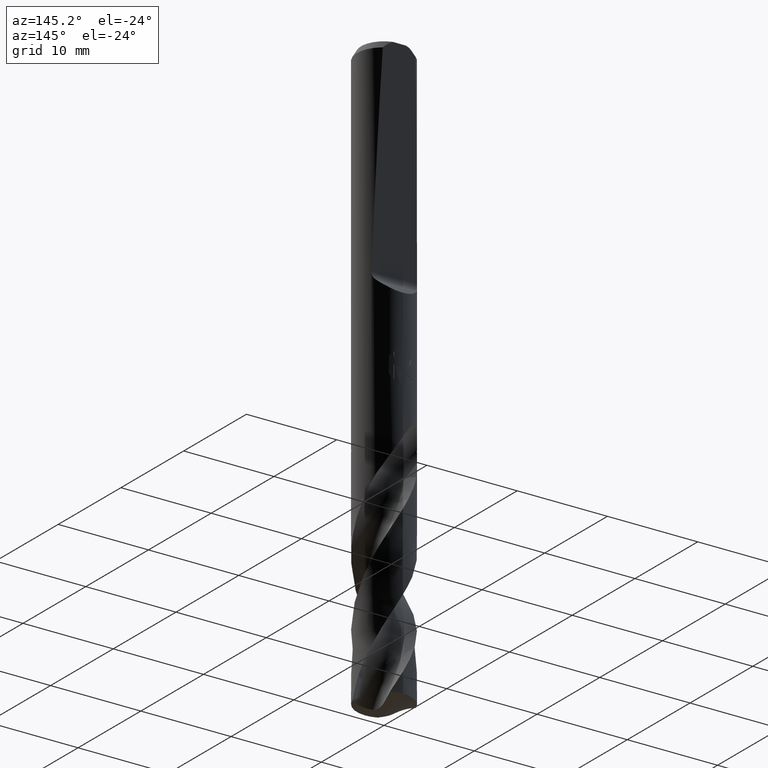
[diagram: clean part render]
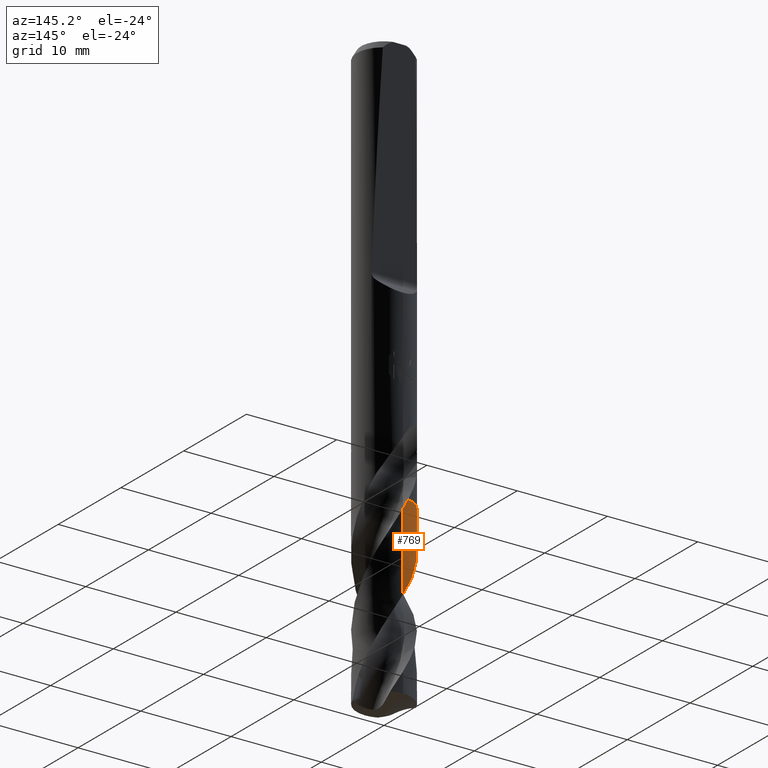
[diagram: same view with one face highlighted and labeled with its STEP entity id]
A machine part, auxiliary view. The second image highlights one B-rep face of the part: STEP entity #769.
In plain terms, the highlighted conical surface has half-angle 0 deg.
Its self-contained STEP definition (entity closure, byte-faithful):
#313=EDGE_CURVE('',#343,#473,#849,.T.);
#315=VERTEX_POINT('',#851);
#335=EDGE_CURVE('',#473,#597,#874,.T.);
#343=VERTEX_POINT('',#883);
#399=EDGE_CURVE('',#665,#343,#949,.T.);
#473=VERTEX_POINT('',#1030);
#597=VERTEX_POINT('',#1161);
#599=EDGE_CURVE('',#597,#717,#1163,.T.);
#625=EDGE_CURVE('',#717,#315,#1191,.T.);
#665=VERTEX_POINT('',#1232);
#685=EDGE_CURVE('',#315,#665,#1253,.T.);
#717=VERTEX_POINT('',#1286);
#769=ADVANCED_FACE('',(#1344),#1345,.T.);
#849=B_SPLINE_CURVE_WITH_KNOTS('',3,(#1596,#1597,#1598,#1599),.UNSPECIFIED.,.F.,.F.,(4,4),(0.0,0.0106873064534853),.UNSPECIFIED.);
#851=CARTESIAN_POINT('',(1.38944868348976E-011,2.99990574704637,-46.5211389365925));
#874=CIRCLE('',#1726,2.9999);
#883=CARTESIAN_POINT('',(-2.86578746513015,-0.88693989719291,-45.405));
#949=B_SPLINE_CURVE_WITH_KNOTS('',3,(#2419,#2420,#2421,#2422,#2423,#2424,#2425,#2426,#2427,#2428,#2429,#2430,#2431,#2432,#2433,#2434,#2435,#2436,#2437,#2438,#2439,#2440,#2441,#2442,#2443,#2444,#2445,#2446,#2447,#2448,#2449,#2450,#2451,#2452,#2453,#2454,#2455,#2456,#2457,#2458,#2459,#2460,#2461,#2462,#2463,#2464,#2465,#2466,#2467,#2468,#2469,#2470),.UNSPECIFIED.,.F.,.F.,(4,2,2,2,2,2,2,2,2,2,2,2,2,2,2,2,2,2,2,2,2,2,2,2,2,4),(0.0,0.705446608272091,5.40706832285761,5.98513556122134,7.10352541670759,7.68127963469226,8.83994438663613,9.12898939676574,10.2894917210956,10.8678122313131,12.0297274511684,12.6086770989085,13.7711370252399,14.3504561979634,15.3924379983706,16.3031634962617,17.1021971318671,17.8000898956323,19.0251833903807,19.4832370218238,20.2870865764002,20.890072592072,20.9465423813497,21.8220644772544,22.2587266854769,22.7001084765415),.UNSPECIFIED.);
#1030=CARTESIAN_POINT('',(-2.86493406579316,-0.88969253602459,-45.4));
#1161=CARTESIAN_POINT('',(-0.645454874550124,2.92963957082087,-45.4));
#1163=B_SPLINE_CURVE_WITH_KNOTS('',3,(#4247,#4248,#4249,#4250),.UNSPECIFIED.,.F.,.F.,(4,4),(0.0,0.00905578362424371),.UNSPECIFIED.);
#1191=B_SPLINE_CURVE_WITH_KNOTS('',3,(#4924,#4925,#4926,#4927,#4928,#4929,#4930,#4931,#4932,#4933,#4934,#4935,#4936,#4937,#4938,#4939,#4940,#4941,#4942,#4943,#4944,#4945,#4946,#4947,#4948,#4949,#4950,#4951,#4952,#4953,#4954,#4955,#4956,#4957,#4958,#4959,#4960,#4961,#4962,#4963,#4964,#4965,#4966,#4967,#4968,#4969,#4970,#4971,#4972,#4973,#4974,#4975,#4976,#4977,#4978,#4979),.UNSPECIFIED.,.F.,.F.,(4,2,2,2,2,2,2,2,2,2,2,2,2,2,2,2,2,2,2,2,2,2,2,2,2,2,2,4),(0.0,0.225382087949521,1.87376444631802,3.02496289065373,4.17865409136242,4.75803484338012,5.91240927928158,6.49185770010657,7.06913345058156,8.22003762021366,8.79669718998492,9.94785802051222,10.5241990910887,11.6761096315951,12.2516570747343,13.4037427645662,13.9789962394554,15.0481157222628,15.5167009538768,16.3949770722517,16.7807306133449,17.5022715909719,18.1350078136786,19.2438847224764,20.074938888117,20.6986238480761,21.6340570118374,22.569807056742),.UNSPECIFIED.);
#1232=CARTESIAN_POINT('',(-5.85740966708399E-014,2.99994958719086,-55.0735134743872));
#1253=LINE('',#5449,#5450);
#1286=CARTESIAN_POINT('',(-0.642616241034227,2.93026355990998,-45.405));
#1344=FACE_OUTER_BOUND('',#6442,.T.);
#1345=CONICAL_SURFACE('',#6443,2.99995,5.12607864747067E-006);
#1596=CARTESIAN_POINT('',(-2.86651224045232,-0.884594749091712,-45.4092596152647));
#1597=CARTESIAN_POINT('',(-2.86598778406809,-0.886294186240624,-45.4061729009179));
#1598=CARTESIAN_POINT('',(-2.86546172629451,-0.887993448954527,-45.4030863610158));
#1599=CARTESIAN_POINT('',(-2.86493406579315,-0.8896925360246,-45.3999999999999));
#1726=AXIS2_PLACEMENT_3D('',#7093,#7094,#7095);
#2419=CARTESIAN_POINT('',(2.83578480141644,-0.978940529376281,-64.9080892972014));
#2420=CARTESIAN_POINT('',(2.87435000728393,-0.867222046365936,-64.7047996116744));
#2421=CARTESIAN_POINT('',(2.90615513206193,-0.753701156081327,-64.5005996001258));
#2422=CARTESIAN_POINT('',(3.09799910816412,0.12654887784846,-62.9444885890713));
#2423=CARTESIAN_POINT('',(2.95830028869784,0.929312489320252,-61.6477341353993));
#2424=CARTESIAN_POINT('',(2.49032486358946,1.67554048772556,-60.1292124913606));
#2425=CARTESIAN_POINT('',(2.43512768770697,1.75480313533886,-59.9624878230635));
#2426=CARTESIAN_POINT('',(2.26205544884268,1.97936158068503,-59.4742881575344));
#2427=CARTESIAN_POINT('',(2.13442598735591,2.11634281534202,-59.1544091575671));
#2428=CARTESIAN_POINT('',(1.92295373049383,2.30463870783367,-58.6661952518594));
#2429=CARTESIAN_POINT('',(1.84780411884974,2.36532401866889,-58.4994236207581));
#2430=CARTESIAN_POINT('',(1.61333589594123,2.53662740541246,-57.9993402962821));
#2431=CARTESIAN_POINT('',(1.44625178488867,2.63544913354008,-57.6678481071082));
#2432=CARTESIAN_POINT('',(1.22719911899685,2.73789663304777,-57.2508250350996));
#2433=CARTESIAN_POINT('',(1.18302057367263,2.75727280049393,-57.1674817581757));
#2434=CARTESIAN_POINT('',(0.959098612539564,2.84910912792855,-56.7500035206201));
#2435=CARTESIAN_POINT('',(0.773028743242885,2.9051346582914,-56.4180650824832));
#2436=CARTESIAN_POINT('',(0.487864653664583,2.9615974632123,-55.9176251281659));
#2437=CARTESIAN_POINT('',(0.392265816445113,2.97575993026527,-55.7508198366613));
#2438=CARTESIAN_POINT('',(0.103475570651715,3.00442023571628,-55.2502709444123));
#2439=CARTESIAN_POINT('',(-0.0908342022499105,3.00484161769168,-54.9183589541786));
#2440=CARTESIAN_POINT('',(-0.380175461512969,2.97732881509387,-54.417950674543));
#2441=CARTESIAN_POINT('',(-0.475804588369849,2.96354423120082,-54.2511656967655));
#2442=CARTESIAN_POINT('',(-0.760765526990612,2.90833894007719,-53.75077483534));
#2443=CARTESIAN_POINT('',(-0.947005146428082,2.85314049946011,-53.4190241907952));
#2444=CARTESIAN_POINT('',(-1.21621574119983,2.74404528997679,-52.9187347692396));
#2445=CARTESIAN_POINT('',(-1.30385999650181,2.70349582801492,-52.7519523209526));
#2446=CARTESIAN_POINT('',(-1.54324423176425,2.57839912064857,-52.286367192462));
#2447=CARTESIAN_POINT('',(-1.68988464377409,2.48476988684352,-51.9888003332413));
#2448=CARTESIAN_POINT('',(-1.94808967684646,2.28639328491249,-51.4283233817485));
#2449=CARTESIAN_POINT('',(-2.06126717189798,2.18490798408153,-51.1662219787814));
#2450=CARTESIAN_POINT('',(-2.25851067761979,1.97900189923354,-50.6754804216138));
#2451=CARTESIAN_POINT('',(-2.3441641869363,1.87675214935319,-50.446867051566));
#2452=CARTESIAN_POINT('',(-2.49135312100964,1.67518411611942,-50.0172103165685));
#2453=CARTESIAN_POINT('',(-2.55438852499866,1.57738630048189,-49.8163817639402));
#2454=CARTESIAN_POINT('',(-2.7119971520517,1.29854872415317,-49.2645082430682));
#2455=CARTESIAN_POINT('',(-2.79397337766998,1.11121228272199,-48.9156266828256));
#2456=CARTESIAN_POINT('',(-2.87960595361647,0.844496535992523,-48.4325673156642));
#2457=CARTESIAN_POINT('',(-2.90012321266878,0.771097804319986,-48.3008678700261));
#2458=CARTESIAN_POINT('',(-2.94893473029507,0.566725472296847,-47.938603746017));
#2459=CARTESIAN_POINT('',(-2.97130926220007,0.434484276054672,-47.7085580702557));
#2460=CARTESIAN_POINT('',(-2.99486061317648,0.200967650503872,-47.3049828629751));
#2461=CARTESIAN_POINT('',(-2.99990348468771,0.100541963318076,-47.1322518902158));
#2462=CARTESIAN_POINT('',(-2.99990840973737,-0.00923959171204074,-46.9429392107788));
#2463=CARTESIAN_POINT('',(-2.99986470463857,-0.0186352806687522,-46.9267325478437));
#2464=CARTESIAN_POINT('',(-2.99841138155027,-0.1739390767406,-46.6589469978241));
#2465=CARTESIAN_POINT('',(-2.98640507444439,-0.319594061724421,-46.4086176761205));
#2466=CARTESIAN_POINT('',(-2.95256129677116,-0.53582240475002,-46.0317657143547));
#2467=CARTESIAN_POINT('',(-2.93870162674591,-0.607220163443061,-45.9064443812619));
#2468=CARTESIAN_POINT('',(-2.90571914083153,-0.749390805647392,-45.653982274904));
#2469=CARTESIAN_POINT('',(-2.88685345784998,-0.818883184063448,-45.5286178936789));
#2470=CARTESIAN_POINT('',(-2.86576029952143,-0.887027657156929,-45.4048405891515));
#4247=CARTESIAN_POINT('',(-0.645454874550116,2.92963957082086,-45.4));
#4248=CARTESIAN_POINT('',(-0.643973392425425,2.92996598298427,-45.4026097085698));
#4249=CARTESIAN_POINT('',(-0.642491708645801,2.93029126127386,-45.4052194425592));
#4250=CARTESIAN_POINT('',(-0.641009824482914,2.9306154056285,-45.4078292055584));
#4924=CARTESIAN_POINT('',(-0.643241620937796,2.93012633635377,-45.4038985178688));
#4925=CARTESIAN_POINT('',(-0.606365207848228,2.93822204275507,-45.4688501176507));
#4926=CARTESIAN_POINT('',(-0.569363509966324,2.94561547099591,-45.5338303659042));
#4927=CARTESIAN_POINT('',(-0.260921018305627,3.00122655763042,-46.0738427056399));
#4928=CARTESIAN_POINT('',(0.0160497142734619,3.01252734972969,-46.5474051945437));
#4929=CARTESIAN_POINT('',(0.482497215600983,2.96711886417773,-47.3539417633346));
#4930=CARTESIAN_POINT('',(0.672030503138311,2.93001078845401,-47.6851216244899));
#4931=CARTESIAN_POINT('',(1.04170662414592,2.81986114438684,-48.3492479051008));
#4932=CARTESIAN_POINT('',(1.22094500983177,2.74700459928121,-48.6809899516881));
#4933=CARTESIAN_POINT('',(1.4777438375734,2.61250482463034,-49.1804350256718));
#4934=CARTESIAN_POINT('',(1.5613871493213,2.56339493929486,-49.3472957388654));
#4935=CARTESIAN_POINT('',(1.80419005314025,2.40452883788914,-49.8468477574774));
#4936=CARTESIAN_POINT('',(1.95523036932339,2.28340035452651,-50.17864909223));
#4937=CARTESIAN_POINT('',(2.16298158463371,2.08097818573764,-50.678293253082));
#4938=CARTESIAN_POINT('',(2.22910621259614,2.00998943611758,-50.8451690976137));
#4939=CARTESIAN_POINT('',(2.35403500843341,1.86210393819003,-51.1784636646399));
#4940=CARTESIAN_POINT('',(2.41277000240729,1.78534391601545,-51.3446081764889));
#4941=CARTESIAN_POINT('',(2.5771967863336,1.54749347424396,-51.8426224979961));
#4942=CARTESIAN_POINT('',(2.67121725011379,1.37888221027972,-52.1737445311976));
#4943=CARTESIAN_POINT('',(2.78711655873351,1.11396645607255,-52.6715447655577));
#4944=CARTESIAN_POINT('',(2.8215056463832,1.02374060439679,-52.8375208342601));
#4945=CARTESIAN_POINT('',(2.91132826837524,0.748941425500375,-53.3354741867701));
#4946=CARTESIAN_POINT('',(2.95341363355806,0.560475672603881,-53.6666843931056));
#4947=CARTESIAN_POINT('',(2.98900831322676,0.273507086300949,-54.1645052264682));
#4948=CARTESIAN_POINT('',(2.99625616803971,0.177269595059846,-54.3304143460387));
#4949=CARTESIAN_POINT('',(3.00405395149766,-0.111819086109163,-54.8285318733433));
#4950=CARTESIAN_POINT('',(2.99066955528098,-0.304603597868122,-55.1599322075609));
#4951=CARTESIAN_POINT('',(2.94297342483961,-0.589836115776738,-55.6577638785044));
#4952=CARTESIAN_POINT('',(2.92251735910177,-0.684023831149954,-55.8234633770344));
#4953=CARTESIAN_POINT('',(2.84763783428603,-0.963255662133484,-56.3214441471238));
#4954=CARTESIAN_POINT('',(2.77985678007652,-1.14426606302537,-56.6529117440256));
#4955=CARTESIAN_POINT('',(2.6528514420838,-1.40407114373644,-57.1507455079575));
#4956=CARTESIAN_POINT('',(2.60642353832864,-1.48848583132508,-57.316387666951));
#4957=CARTESIAN_POINT('',(2.46236671136609,-1.72294547633235,-57.7903988813624));
#4958=CARTESIAN_POINT('',(2.35523148245356,-1.86673957361645,-58.0980810785118));
#4959=CARTESIAN_POINT('',(2.18358114522661,-2.05862397787309,-58.5412819009201));
#4960=CARTESIAN_POINT('',(2.12900944782207,-2.11501275556821,-58.6762219408293));
#4961=CARTESIAN_POINT('',(1.96599910420164,-2.27074428280091,-59.0644670210302));
#4962=CARTESIAN_POINT('',(1.85237557419878,-2.36434905238245,-59.3174836826958));
#4963=CARTESIAN_POINT('',(1.67963173908685,-2.48653292763703,-59.6818636031583));
#4964=CARTESIAN_POINT('',(1.62571717568804,-2.52211380958693,-59.7930248230865));
#4965=CARTESIAN_POINT('',(1.46775967434258,-2.61918489110978,-60.1121939805657));
#4966=CARTESIAN_POINT('',(1.3611298650986,-2.67614750352528,-60.3199467730879));
#4967=CARTESIAN_POINT('',(1.15514747647779,-2.77068908027071,-60.7103814190704));
#4968=CARTESIAN_POINT('',(1.05662193340771,-2.809741458145,-60.8926989290213));
#4969=CARTESIAN_POINT('',(0.780265915865632,-2.90267779786263,-61.3947476928211));
#4970=CARTESIAN_POINT('',(0.599233686593915,-2.94537879703402,-61.7134432480763));
#4971=CARTESIAN_POINT('',(0.277718983885472,-2.99033994595412,-62.2727408529233));
#4972=CARTESIAN_POINT('',(0.138780253319351,-3.00000424565497,-62.5120884935675));
#4973=CARTESIAN_POINT('',(-0.104775643009275,-2.99997742677177,-62.9314423792946));
#4974=CARTESIAN_POINT('',(-0.209112710435482,-2.9945143809223,-63.111033484544));
#4975=CARTESIAN_POINT('',(-0.468678242743627,-2.96729149350402,-63.5605080338644));
#4976=CARTESIAN_POINT('',(-0.622932608324862,-2.93878631270246,-63.8298373100531));
#4977=CARTESIAN_POINT('',(-0.925694203980459,-2.8579071865253,-64.3691990479127));
#4978=CARTESIAN_POINT('',(-1.07357805357992,-2.805693444214,-64.6381938027612));
#4979=CARTESIAN_POINT('',(-1.21663598831296,-2.74222480331969,-64.9080892972014));
#5449=CARTESIAN_POINT('',(-3.52731201666155E-016,2.99995,-55.1540446486007));
#5450=VECTOR('',#7453,1.0);
#6442=EDGE_LOOP('',(#7520,#7521,#7522,#7523,#7524,#7525));
#6443=AXIS2_PLACEMENT_3D('',#7526,#7527,#7528);
#7093=CARTESIAN_POINT('',(0.0,0.0,-45.4));
#7094=DIRECTION('',(0.0,0.0,-1.0));
#7095=DIRECTION('',(0.0,1.0,0.0));
#7453=DIRECTION('',(-6.2774284818583E-022,5.12607864744822E-006,-0.999999999986862));
#7520=ORIENTED_EDGE('',*,*,#685,.T.);
#7521=ORIENTED_EDGE('',*,*,#399,.T.);
#7522=ORIENTED_EDGE('',*,*,#313,.T.);
#7523=ORIENTED_EDGE('',*,*,#335,.T.);
#7524=ORIENTED_EDGE('',*,*,#599,.T.);
#7525=ORIENTED_EDGE('',*,*,#625,.T.);
#7526=CARTESIAN_POINT('',(0.0,0.0,-55.1540446486007));
#7527=DIRECTION('',(0.0,-0.0,-1.0));
#7528=DIRECTION('',(0.0,1.0,0.0));